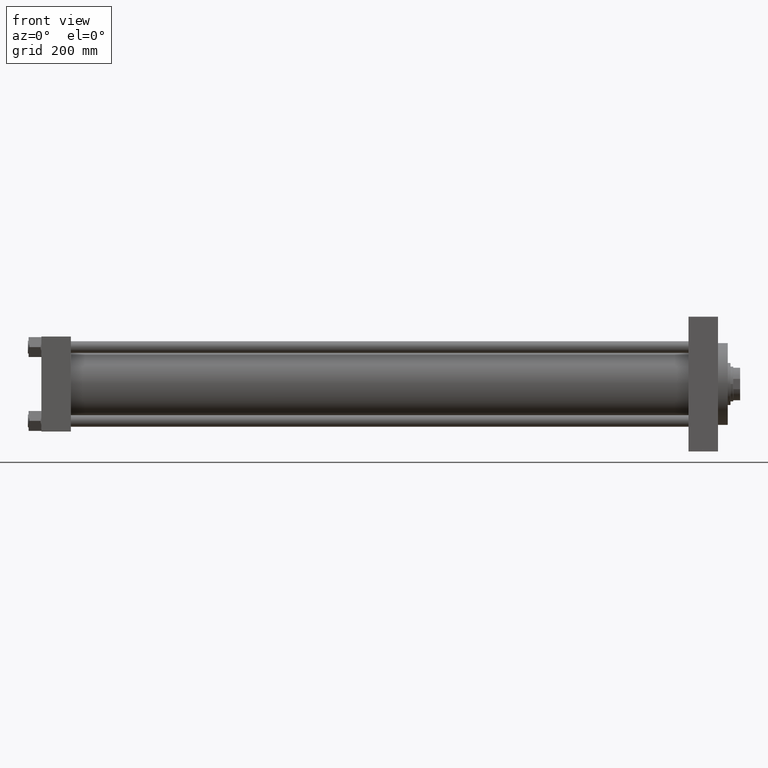
[diagram: clean part render]
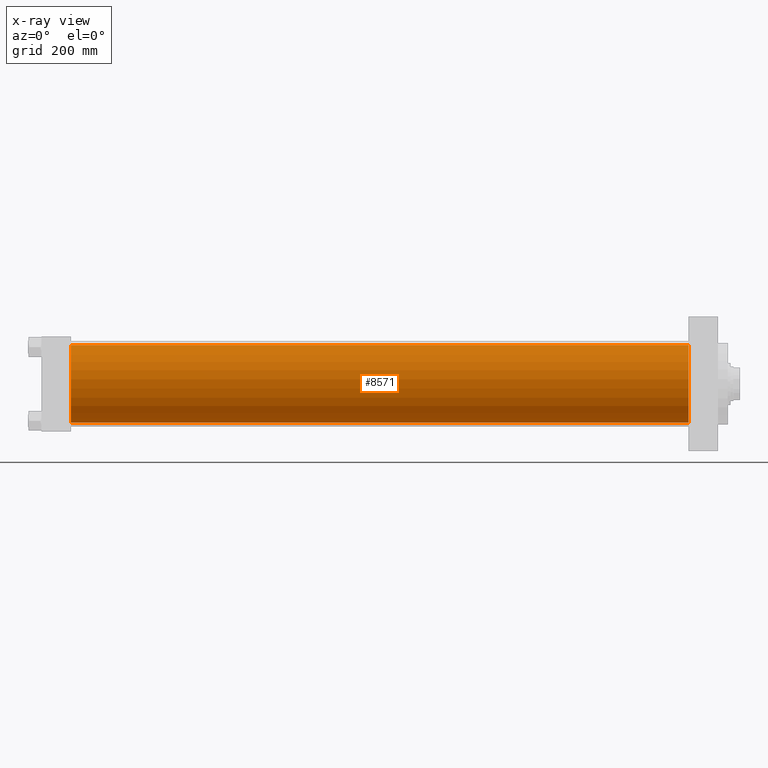
[diagram: x-ray — body ghosted, one internal face saturated and labeled with its STEP entity id]
A machine part, front view, then the same camera in x-ray: the body is ghosted and one INTERNAL B-rep face — a face not visible from any outside direction — is saturated and labeled: STEP entity #8571.
In plain terms, the highlighted cylindrical surface (partial cylindrical patch) has radius 100 mm, axis along (-1, -0, -0).
Its self-contained STEP definition (entity closure, byte-faithful):
#1366 = DIRECTION ( 'NONE',  ( 0.000000000000000000, 0.000000000000000000, 1.000000000000000000 ) ) ;
#2146 = VECTOR ( 'NONE', #35537, 1000.000000000000000 ) ;
#2304 = EDGE_CURVE ( 'NONE', #5226, #42887, #8091, .T. ) ;
#5024 = EDGE_CURVE ( 'NONE', #5226, #25498, #32055, .T. ) ;
#5226 = VERTEX_POINT ( 'NONE', #35095 ) ;
#6244 = DIRECTION ( 'NONE',  ( 0.000000000000000000, 0.000000000000000000, -1.000000000000000000 ) ) ;
#6598 = VERTEX_POINT ( 'NONE', #38721 ) ;
#6655 = AXIS2_PLACEMENT_3D ( 'NONE', #25276, #10823, #6244 ) ;
#8091 = LINE ( 'NONE', #16032, #41939 ) ;
#8357 = CARTESIAN_POINT ( 'NONE',  ( 1667.000000000000000, 9.644382777508321529E-15, -100.0000000000000000 ) ) ;
#8571 = ADVANCED_FACE ( 'NONE', ( #33901 ), #19913, .F. ) ;
#9428 = DIRECTION ( 'NONE',  ( 0.000000000000000000, 0.000000000000000000, -1.000000000000000000 ) ) ;
#9514 = LINE ( 'NONE', #17212, #2146 ) ;
#9923 = EDGE_LOOP ( 'NONE', ( #15618, #26348, #32630, #39414 ) ) ;
#10823 = DIRECTION ( 'NONE',  ( 1.000000000000000000, 0.000000000000000000, 0.000000000000000000 ) ) ;
#11750 = CARTESIAN_POINT ( 'NONE',  ( 1667.000000000000000, -2.602085213965210642E-15, 0.000000000000000000 ) ) ;
#12992 = AXIS2_PLACEMENT_3D ( 'NONE', #32066, #20749, #9428 ) ;
#15618 = ORIENTED_EDGE ( 'NONE', *, *, #5024, .T. ) ;
#16032 = CARTESIAN_POINT ( 'NONE',  ( 1667.000000000000000, -2.602085213965210642E-15, 100.0000000000000000 ) ) ;
#17212 = CARTESIAN_POINT ( 'NONE',  ( 1667.000000000000000, 9.644382777508321529E-15, -100.0000000000000000 ) ) ;
#19637 = DIRECTION ( 'NONE',  ( -1.000000000000000000, -0.000000000000000000, -0.000000000000000000 ) ) ;
#19913 = CYLINDRICAL_SURFACE ( 'NONE', #35210, 100.0000000000000000 ) ;
#20749 = DIRECTION ( 'NONE',  ( 1.000000000000000000, 0.000000000000000000, 0.000000000000000000 ) ) ;
#23011 = CIRCLE ( 'NONE', #12992, 100.0000000000000000 ) ;
#25276 = CARTESIAN_POINT ( 'NONE',  ( 1667.000000000000000, -2.602085213965210642E-15, 0.000000000000000000 ) ) ;
#25498 = VERTEX_POINT ( 'NONE', #8357 ) ;
#26348 = ORIENTED_EDGE ( 'NONE', *, *, #42971, .T. ) ;
#32055 = CIRCLE ( 'NONE', #6655, 100.0000000000000000 ) ;
#32066 = CARTESIAN_POINT ( 'NONE',  ( 76.00000000000000000, -2.602085213965210642E-15, 0.000000000000000000 ) ) ;
#32630 = ORIENTED_EDGE ( 'NONE', *, *, #45224, .F. ) ;
#33901 = FACE_OUTER_BOUND ( 'NONE', #9923, .T. ) ;
#34371 = DIRECTION ( 'NONE',  ( -1.000000000000000000, -0.000000000000000000, -0.000000000000000000 ) ) ;
#35095 = CARTESIAN_POINT ( 'NONE',  ( 1667.000000000000000, -2.602085213965210642E-15, 100.0000000000000000 ) ) ;
#35210 = AXIS2_PLACEMENT_3D ( 'NONE', #11750, #34371, #1366 ) ;
#35537 = DIRECTION ( 'NONE',  ( -1.000000000000000000, -0.000000000000000000, -0.000000000000000000 ) ) ;
#37497 = CARTESIAN_POINT ( 'NONE',  ( 76.00000000000000000, -2.602085213965210642E-15, 100.0000000000000000 ) ) ;
#38721 = CARTESIAN_POINT ( 'NONE',  ( 76.00000000000000000, 9.644382777508321529E-15, -100.0000000000000000 ) ) ;
#39414 = ORIENTED_EDGE ( 'NONE', *, *, #2304, .F. ) ;
#41939 = VECTOR ( 'NONE', #19637, 1000.000000000000000 ) ;
#42887 = VERTEX_POINT ( 'NONE', #37497 ) ;
#42971 = EDGE_CURVE ( 'NONE', #25498, #6598, #9514, .T. ) ;
#45224 = EDGE_CURVE ( 'NONE', #42887, #6598, #23011, .T. ) ;